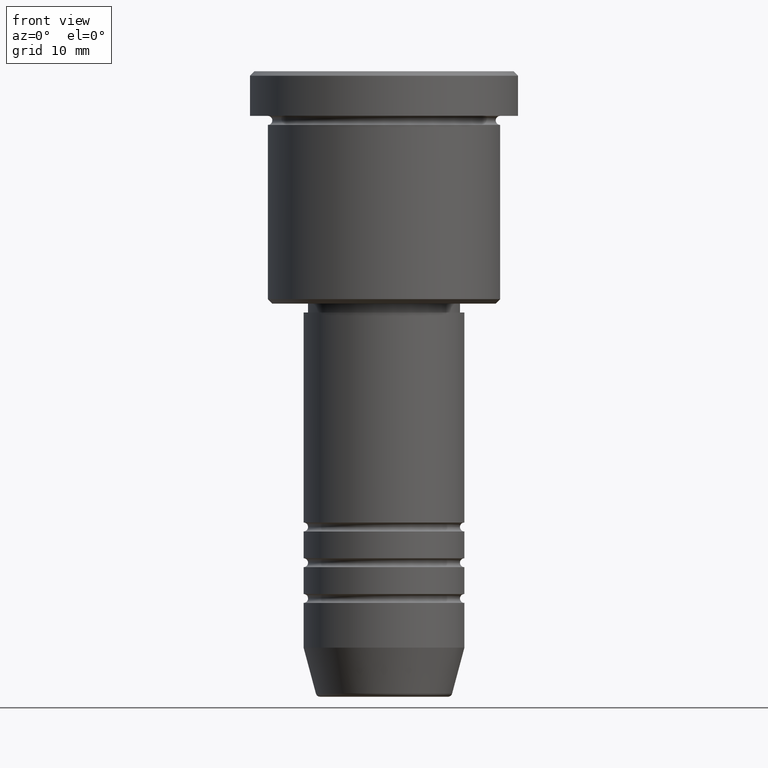
[diagram: clean part render]
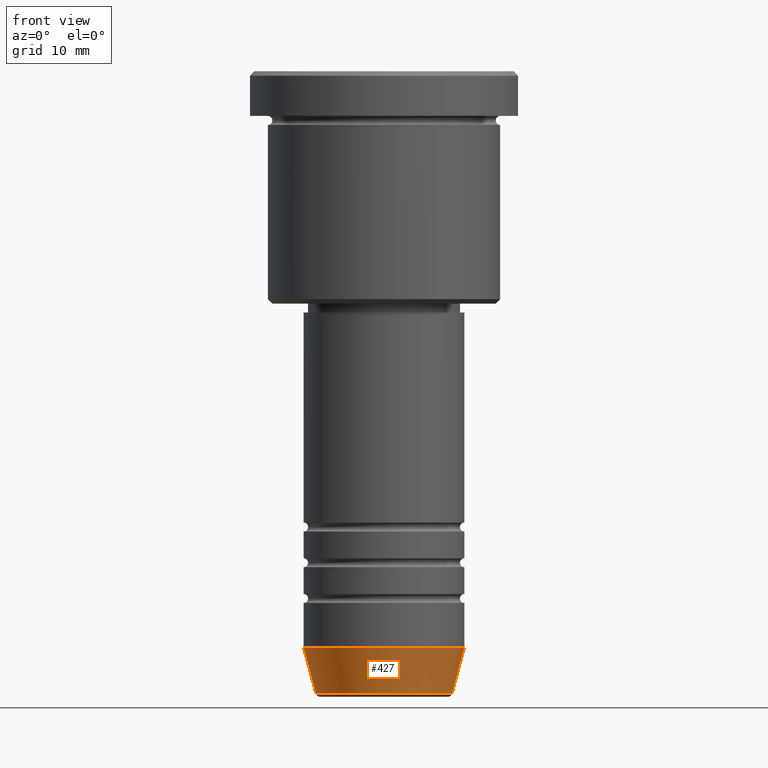
[diagram: same view with one face highlighted and labeled with its STEP entity id]
A machine part, front view. The second image highlights one B-rep face of the part: STEP entity #427.
In plain terms, the highlighted conical surface has half-angle 15 deg.
Its self-contained STEP definition (entity closure, byte-faithful):
#84 = CARTESIAN_POINT ( 'NONE',  ( 7.625578860783879698, 0.000000000000000000, -69.62940952255125637 ) ) ;
#164 = CARTESIAN_POINT ( 'NONE',  ( 0.000000000000000000, 0.000000000000000000, -64.50000000000000000 ) ) ;
#172 = DIRECTION ( 'NONE',  ( -0.000000000000000000, -0.000000000000000000, 1.000000000000000000 ) ) ;
#200 = ORIENTED_EDGE ( 'NONE', *, *, #682, .F. ) ;
#208 = DIRECTION ( 'NONE',  ( -0.000000000000000000, -0.000000000000000000, 1.000000000000000000 ) ) ;
#267 = EDGE_CURVE ( 'NONE', #477, #596, #311, .T. ) ;
#270 = AXIS2_PLACEMENT_3D ( 'NONE', #164, #172, #444 ) ;
#311 = LINE ( 'NONE', #764, #321 ) ;
#321 = VECTOR ( 'NONE', #853, 1000.000000000000000 ) ;
#368 = CARTESIAN_POINT ( 'NONE',  ( 9.000000000000001776, 0.000000000000000000, -64.50000000000000000 ) ) ;
#406 = EDGE_LOOP ( 'NONE', ( #496, #686, #468, #200 ) ) ;
#427 = ADVANCED_FACE ( 'NONE', ( #638 ), #664, .T. ) ;
#444 = DIRECTION ( 'NONE',  ( 1.000000000000000000, 0.000000000000000000, 0.000000000000000000 ) ) ;
#468 = ORIENTED_EDGE ( 'NONE', *, *, #267, .T. ) ;
#477 = VERTEX_POINT ( 'NONE', #84 ) ;
#496 = ORIENTED_EDGE ( 'NONE', *, *, #1078, .F. ) ;
#541 = DIRECTION ( 'NONE',  ( 1.000000000000000000, 0.000000000000000000, 0.000000000000000000 ) ) ;
#596 = VERTEX_POINT ( 'NONE', #368 ) ;
#638 = FACE_OUTER_BOUND ( 'NONE', #406, .T. ) ;
#664 = CONICAL_SURFACE ( 'NONE', #270, 9.000000000000001776, 0.2617993877991501295 ) ;
#673 = CARTESIAN_POINT ( 'NONE',  ( -9.000000000000001776, 1.102182119232617911E-15, -64.50000000000000000 ) ) ;
#682 = EDGE_CURVE ( 'NONE', #995, #596, #1040, .T. ) ;
#686 = ORIENTED_EDGE ( 'NONE', *, *, #788, .T. ) ;
#731 = DIRECTION ( 'NONE',  ( -0.000000000000000000, -0.000000000000000000, 1.000000000000000000 ) ) ;
#754 = CARTESIAN_POINT ( 'NONE',  ( -9.000000000000001776, 1.102182119232617911E-15, -64.50000000000000000 ) ) ;
#760 = CIRCLE ( 'NONE', #803, 7.625578860783879698 ) ;
#764 = CARTESIAN_POINT ( 'NONE',  ( 9.000000000000001776, 0.000000000000000000, -64.50000000000000000 ) ) ;
#780 = AXIS2_PLACEMENT_3D ( 'NONE', #816, #731, #541 ) ;
#788 = EDGE_CURVE ( 'NONE', #1076, #477, #760, .T. ) ;
#803 = AXIS2_PLACEMENT_3D ( 'NONE', #863, #208, #932 ) ;
#816 = CARTESIAN_POINT ( 'NONE',  ( 0.000000000000000000, 0.000000000000000000, -64.50000000000000000 ) ) ;
#853 = DIRECTION ( 'NONE',  ( 0.2588190451025214056, 0.000000000000000000, 0.9659258262890680902 ) ) ;
#863 = CARTESIAN_POINT ( 'NONE',  ( 0.000000000000000000, 0.000000000000000000, -69.62940952255125637 ) ) ;
#878 = LINE ( 'NONE', #673, #907 ) ;
#907 = VECTOR ( 'NONE', #943, 1000.000000000000000 ) ;
#932 = DIRECTION ( 'NONE',  ( 1.000000000000000000, 0.000000000000000000, 0.000000000000000000 ) ) ;
#943 = DIRECTION ( 'NONE',  ( -0.2588190451025214056, 3.169619151431772953E-17, 0.9659258262890680902 ) ) ;
#995 = VERTEX_POINT ( 'NONE', #754 ) ;
#1040 = CIRCLE ( 'NONE', #780, 9.000000000000001776 ) ;
#1067 = CARTESIAN_POINT ( 'NONE',  ( -7.625578860783880586, 1.018023096791544096E-15, -69.62940952255125637 ) ) ;
#1076 = VERTEX_POINT ( 'NONE', #1067 ) ;
#1078 = EDGE_CURVE ( 'NONE', #1076, #995, #878, .T. ) ;